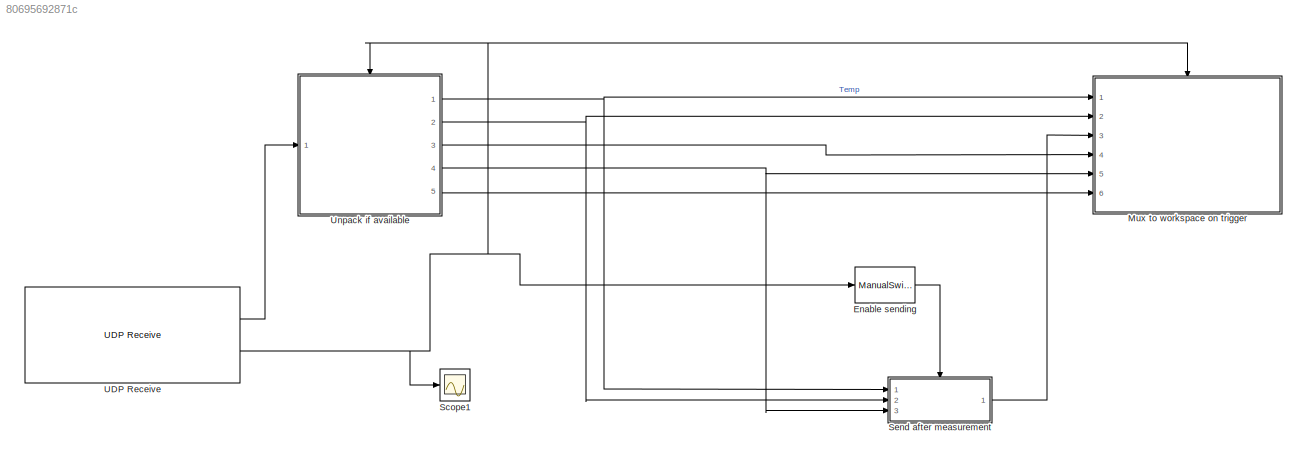
MODEL slx_80695692871c
KIND model
CONFIG AbsTol = auto
CONFIG EnableMultiTasking = off
CONFIG FixedStep = 0.025
CONFIG MaxStep = auto
CONFIG MinStep = auto
CONFIG RelTol = 1e-3
CONFIG SampleTimeConstraint = Unconstrained
CONFIG SolverName = FixedStepAuto
CONFIG StartTime = 0
CONFIG StopTime = 1800
BLOCK [ManualSwitch] Enable sending
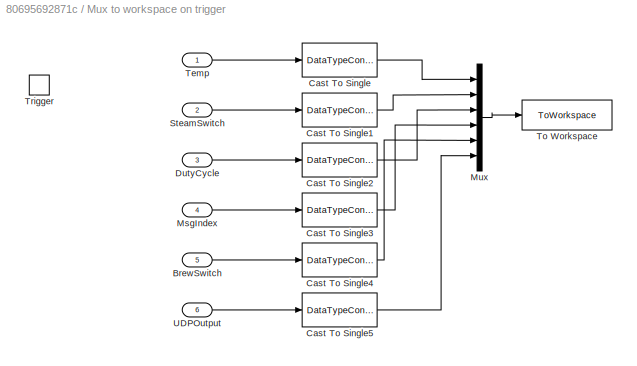
BLOCK [SubSystem] Mux to workspace on trigger
  Ports = [6, 0, 0, 1]
  RequestExecContextInheritance = off
BLOCK [Inport] Mux to workspace on trigger/BrewSwitch
  Port = 5
BLOCK [DataTypeConversion] Mux to workspace on trigger/Cast To Single
  OutDataTypeStr = single
  RndMeth = Floor
  SaturateOnIntegerOverflow = off
BLOCK [DataTypeConversion] Mux to workspace on trigger/Cast To Single1
  OutDataTypeStr = single
  RndMeth = Floor
  SaturateOnIntegerOverflow = off
BLOCK [DataTypeConversion] Mux to workspace on trigger/Cast To Single2
  OutDataTypeStr = single
  RndMeth = Floor
  SaturateOnIntegerOverflow = off
BLOCK [DataTypeConversion] Mux to workspace on trigger/Cast To Single3
  OutDataTypeStr = single
  RndMeth = Floor
  SaturateOnIntegerOverflow = off
BLOCK [DataTypeConversion] Mux to workspace on trigger/Cast To Single4
  OutDataTypeStr = single
  RndMeth = Floor
  SaturateOnIntegerOverflow = off
BLOCK [DataTypeConversion] Mux to workspace on trigger/Cast To Single5
  OutDataTypeStr = single
  RndMeth = Floor
  SaturateOnIntegerOverflow = off
BLOCK [Inport] Mux to workspace on trigger/DutyCycle
  Port = 3
BLOCK [Inport] Mux to workspace on trigger/MsgIndex
  Port = 4
BLOCK [Mux] Mux to workspace on trigger/Mux
  DisplayOption = bar
  Inputs = 6
  Ports = [6, 1]
BLOCK [Inport] Mux to workspace on trigger/SteamSwitch
  Port = 2
BLOCK [Inport] Mux to workspace on trigger/Temp
BLOCK [ToWorkspace] Mux to workspace on trigger/To Workspace
  FixptAsFi = on
  MaxDataPoints = inf
  Ports = [1]
  SampleTime = -1
  SaveFormat = Timeseries
  VariableName = simout
BLOCK [TriggerPort] Mux to workspace on trigger/Trigger
  PortDimensions = 1
  Ports = []
  StatesWhenEnabling = held
  VariantControl = (inherit)
BLOCK [Inport] Mux to workspace on trigger/UDPOutput
  Port = 6
BLOCK [Scope] Scope1
  Floating = off
  NumInputPorts = 1
  Ports = [1]
  ScopeSpecificationString = Simulink.scopes.TimeScopeBlockCfg('CurrentConfiguration', extmgr.ConfigurationSet(extmgr.Configuration('Core','General UI',true),extmgr.Configuration('Core','Source UI',true),extmgr.Configuration('Sources','WiredSimulink',true,'DataLoggingVariableName','ScopeData5'),extmgr.Configuration('Visuals','Time Domain',true,'SerializedDisplays',{struct('MinYLimReal','-1.125','MaxYLimReal','10.125','YLabelR...<+1364ch>
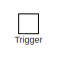
[diagram: Send after measurement - part 1/3, top center region]
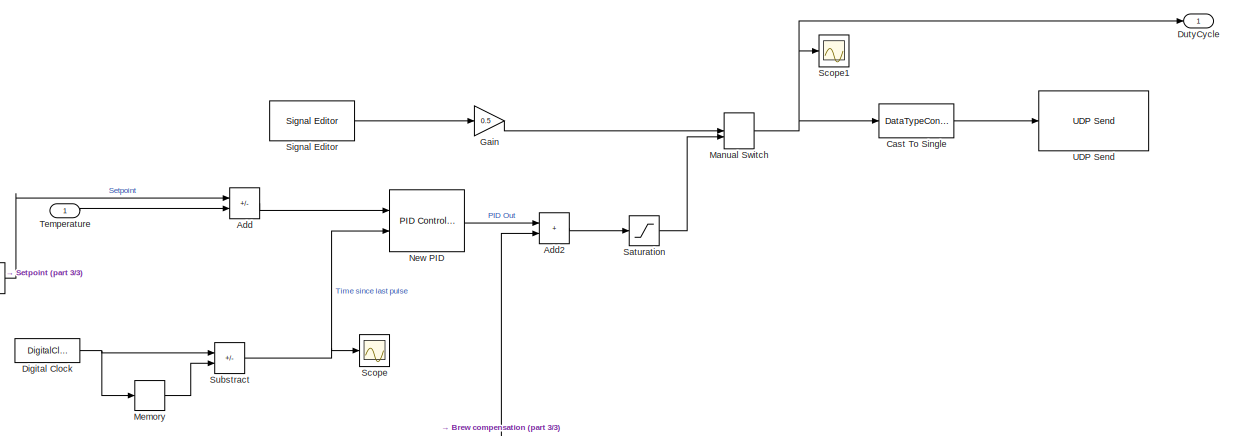
[diagram: Send after measurement - part 2/3, central region]
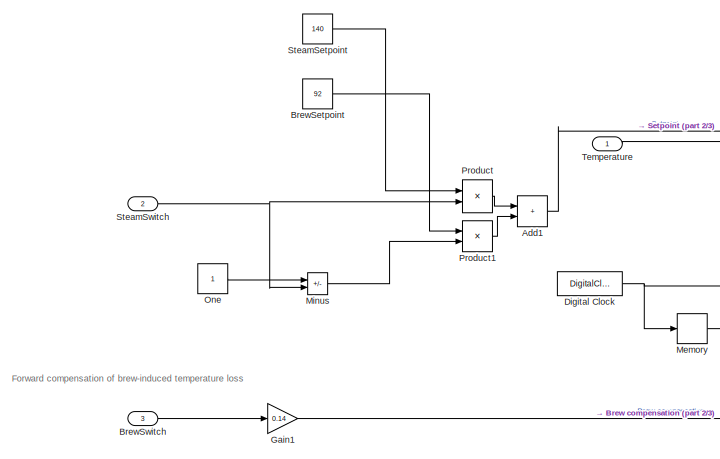
[diagram: Send after measurement - part 3/3, bottom left region]
BLOCK [SubSystem] Send after measurement
  Ports = [3, 1, 0, 1]
  RequestExecContextInheritance = off
BLOCK [Sum] Send after measurement/Add
  IconShape = rectangular
  Inputs = +-
  Ports = [2, 1]
BLOCK [Sum] Send after measurement/Add1
  IconShape = rectangular
  Ports = [2, 1]
BLOCK [Sum] Send after measurement/Add2
  IconShape = rectangular
  Ports = [2, 1]
BLOCK [Constant] Send after measurement/BrewSetpoint
  Value = 92
BLOCK [Inport] Send after measurement/BrewSwitch
  Port = 3
BLOCK [DataTypeConversion] Send after measurement/Cast To Single
  OutDataTypeStr = single
  RndMeth = Floor
  SaturateOnIntegerOverflow = off
BLOCK [DigitalClock] Send after measurement/Digital Clock
  SampleTime = -1
BLOCK [Outport] Send after measurement/DutyCycle
BLOCK [Gain] Send after measurement/Gain
  Gain = 0.5
BLOCK [Gain] Send after measurement/Gain1
  Gain = 0.14
BLOCK [ManualSwitch] Send after measurement/Manual Switch
  CurrentSetting = 0
BLOCK [Memory] Send after measurement/Memory
  InheritSampleTime = on
  LinearizeAsDelay = on
BLOCK [Sum] Send after measurement/Minus
  IconShape = rectangular
  Inputs = +-
  Ports = [2, 1]
BLOCK [Reference] Send after measurement/New PID  REF=slpidlib/PID Controller
  Ports = [2, 1]
  SourceBlock = slpidlib/PID Controller
  SourceProductBaseCode = SL
  SourceType = PID 1dof
BLOCK [Constant] Send after measurement/One
  OutDataTypeStr = Inherit: Inherit via back propagation
BLOCK [Product] Send after measurement/Product
  Ports = [2, 1]
BLOCK [Product] Send after measurement/Product1
  Ports = [2, 1]
BLOCK [Saturate] Send after measurement/Saturation
  LowerLimit = 0
  UpperLimit = 1
BLOCK [Scope] Send after measurement/Scope
  Floating = off
  NumInputPorts = 1
  Ports = [1]
  ScopeSpecificationString = Simulink.scopes.TimeScopeBlockCfg('CurrentConfiguration', extmgr.ConfigurationSet(extmgr.Configuration('Core','General UI',true),extmgr.Configuration('Core','Source UI',true),extmgr.Configuration('Sources','WiredSimulink',true,'DataLoggingVariableName','ScopeData1'),extmgr.Configuration('Visuals','Time Domain',true,'SerializedDisplays',{struct('MinYLimReal','0.30937','MaxYLimReal','1.21563','YLabe...<+1432ch>
BLOCK [Scope] Send after measurement/Scope1
  Floating = off
  NumInputPorts = 1
  Ports = [1]
  ScopeSpecificationString = Simulink.scopes.TimeScopeBlockCfg('CurrentConfiguration', extmgr.ConfigurationSet(extmgr.Configuration('Core','General UI',true),extmgr.Configuration('Core','Source UI',true),extmgr.Configuration('Sources','WiredSimulink',true,'DataLoggingVariableName','ScopeData1'),extmgr.Configuration('Visuals','Time Domain',true,'SerializedDisplays',{struct('MinYLimReal','-0.125','MaxYLimReal','1.125','YLabelRe...<+1360ch>
BLOCK [Reference] Send after measurement/Signal Editor  REF=SignalEditorBlockLib/Signal Editor
  Ports = [0, 1]
  SourceBlock = SignalEditorBlockLib/Signal Editor
  SourceProductBaseCode = SL
  SourceType = SignalEditor
  UserDataPersistent = on
BLOCK [Constant] Send after measurement/SteamSetpoint
  Value = 140
BLOCK [Inport] Send after measurement/SteamSwitch
  Port = 2
BLOCK [Sum] Send after measurement/Substract
  IconShape = rectangular
  Inputs = +-
  Ports = [2, 1]
BLOCK [Inport] Send after measurement/Temperature
BLOCK [TriggerPort] Send after measurement/Trigger
  PortDimensions = 1
  Ports = []
  StatesWhenEnabling = held
  VariantControl = (inherit)
BLOCK [Reference] Send after measurement/UDP Send  REF=dspnetwork/UDP Send
  Ports = [1]
  SourceBlock = dspnetwork/UDP Send
  SourceProductBaseCode = SL
  SourceType = UDP Send
BLOCK [Reference] UDP Receive  REF=slrealtimeiplib/UDP Receive
  Ports = [0, 2]
  SourceBlock = slrealtimeiplib/UDP Receive
  SourceProductBaseCode = XP
  SourceType = slrealtimeudpreceive
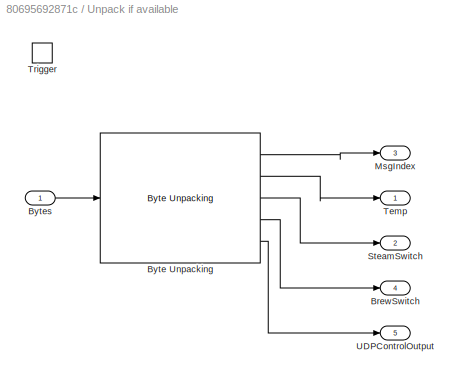
BLOCK [SubSystem] Unpack if available
  Ports = [1, 5, 0, 1]
  RequestExecContextInheritance = off
BLOCK [Outport] Unpack if available/BrewSwitch
  Port = 4
BLOCK [Reference] Unpack if available/Byte Unpacking  REF=slrealtimeutilitieslib/Byte Unpacking
  Ports = [1, 5]
  SourceBlock = slrealtimeutilitieslib/Byte Unpacking
  SourceProductBaseCode = XP
  SourceType = slreraltimebytepacking
BLOCK [Inport] Unpack if available/Bytes
BLOCK [Outport] Unpack if available/MsgIndex
  Port = 3
BLOCK [Outport] Unpack if available/SteamSwitch
  Port = 2
BLOCK [Outport] Unpack if available/Temp
BLOCK [TriggerPort] Unpack if available/Trigger
  PortDimensions = 1
  Ports = []
  StatesWhenEnabling = held
  VariantControl = (inherit)
BLOCK [Outport] Unpack if available/UDPControlOutput
  Port = 5
ANNOTATION Send after measurement: Forward compensation of brew-induced temperature loss
LINE Enable sending:1 -> Send after measurement:trigger
LINE Mux to workspace on trigger/BrewSwitch:1 -> Mux to workspace on trigger/Cast To Single4:1
LINE Mux to workspace on trigger/Cast To Single1:1 -> Mux to workspace on trigger/Mux:2
LINE Mux to workspace on trigger/Cast To Single2:1 -> Mux to workspace on trigger/Mux:3
LINE Mux to workspace on trigger/Cast To Single3:1 -> Mux to workspace on trigger/Mux:4
LINE Mux to workspace on trigger/Cast To Single4:1 -> Mux to workspace on trigger/Mux:5
LINE Mux to workspace on trigger/Cast To Single5:1 -> Mux to workspace on trigger/Mux:6
LINE Mux to workspace on trigger/Cast To Single:1 -> Mux to workspace on trigger/Mux:1
LINE Mux to workspace on trigger/DutyCycle:1 -> Mux to workspace on trigger/Cast To Single2:1
LINE Mux to workspace on trigger/MsgIndex:1 -> Mux to workspace on trigger/Cast To Single3:1
LINE Mux to workspace on trigger/Mux:1 -> Mux to workspace on trigger/To Workspace:1
LINE Mux to workspace on trigger/SteamSwitch:1 -> Mux to workspace on trigger/Cast To Single1:1
LINE Mux to workspace on trigger/Temp:1 -> Mux to workspace on trigger/Cast To Single:1
LINE Mux to workspace on trigger/UDPOutput:1 -> Mux to workspace on trigger/Cast To Single5:1
LINE Send after measurement/Add1:1 -> Send after measurement/Add:1
LINE Send after measurement/Add2:1 -> Send after measurement/Saturation:1
LINE Send after measurement/Add:1 -> Send after measurement/New PID:1
LINE Send after measurement/BrewSetpoint:1 -> Send after measurement/Product1:1
LINE Send after measurement/BrewSwitch:1 -> Send after measurement/Gain1:1
LINE Send after measurement/Cast To Single:1 -> Send after measurement/UDP Send:1
NET Send after measurement/Digital Clock:1 -> Send after measurement/Memory:1, Send after measurement/Substract:1
LINE Send after measurement/Gain1:1 -> Send after measurement/Add2:2
LINE Send after measurement/Gain:1 -> Send after measurement/Manual Switch:1
NET Send after measurement/Manual Switch:1 -> Send after measurement/Cast To Single:1, Send after measurement/DutyCycle:1, Send after measurement/Scope1:1
LINE Send after measurement/Memory:1 -> Send after measurement/Substract:2
LINE Send after measurement/Minus:1 -> Send after measurement/Product1:2
LINE Send after measurement/New PID:1 -> Send after measurement/Add2:1
LINE Send after measurement/One:1 -> Send after measurement/Minus:1
LINE Send after measurement/Product1:1 -> Send after measurement/Add1:2
LINE Send after measurement/Product:1 -> Send after measurement/Add1:1
LINE Send after measurement/Saturation:1 -> Send after measurement/Manual Switch:2
LINE Send after measurement/Signal Editor:1 -> Send after measurement/Gain:1
LINE Send after measurement/SteamSetpoint:1 -> Send after measurement/Product:1
NET Send after measurement/SteamSwitch:1 -> Send after measurement/Minus:2, Send after measurement/Product:2
NET Send after measurement/Substract:1 -> Send after measurement/New PID:2, Send after measurement/Scope:1
LINE Send after measurement/Temperature:1 -> Send after measurement/Add:2
LINE Send after measurement:1 -> Mux to workspace on trigger:3
LINE UDP Receive:1 -> Unpack if available:1
NET UDP Receive:2 -> Enable sending:1, Mux to workspace on trigger:trigger, Scope1:1, Unpack if available:trigger
LINE Unpack if available/Byte Unpacking:1 -> Unpack if available/MsgIndex:1
LINE Unpack if available/Byte Unpacking:2 -> Unpack if available/Temp:1
LINE Unpack if available/Byte Unpacking:3 -> Unpack if available/SteamSwitch:1
LINE Unpack if available/Byte Unpacking:4 -> Unpack if available/BrewSwitch:1
LINE Unpack if available/Byte Unpacking:5 -> Unpack if available/UDPControlOutput:1
LINE Unpack if available/Bytes:1 -> Unpack if available/Byte Unpacking:1
NET Unpack if available:1 -> Mux to workspace on trigger:1, Send after measurement:1
NET Unpack if available:2 -> Mux to workspace on trigger:2, Send after measurement:2
LINE Unpack if available:3 -> Mux to workspace on trigger:4
NET Unpack if available:4 -> Mux to workspace on trigger:5, Send after measurement:3
LINE Unpack if available:5 -> Mux to workspace on trigger:6
note: NET lines group one-source signal fan-out (src -> all destinations, sorted); 1:1 wires keep LINE
